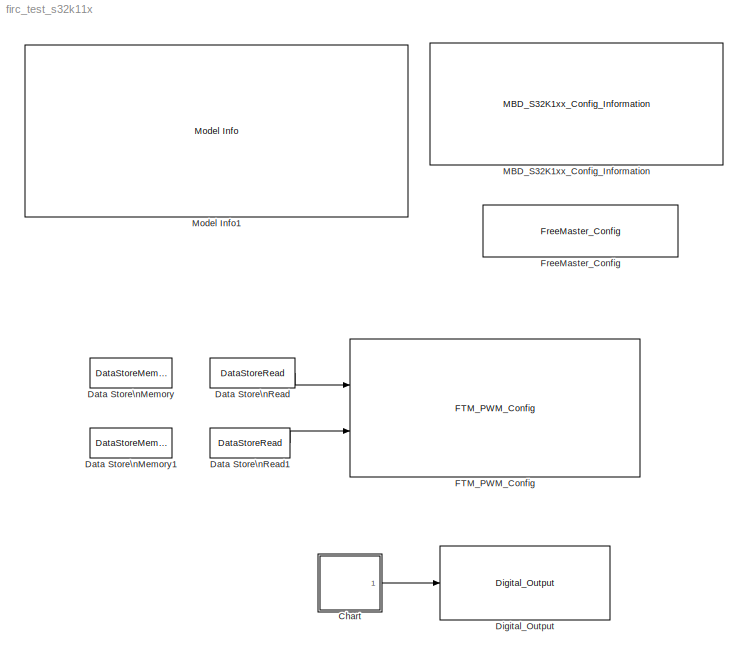
MODEL firc_test_s32k11x
KIND model
CONFIG InitFcn = mbd_s32k_consistency_checks(bdroot(gcs));
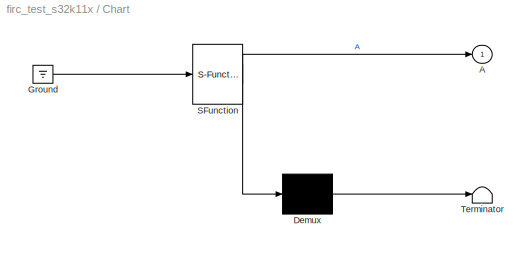
BLOCK [SubSystem] Chart
  ErrorFcn = Stateflow.Translate.translate
  PermitHierarchicalResolution = ExplicitOnly
  Ports = [0, 1]
  RequestExecContextInheritance = off
  SFBlockType = Chart
  SID = 13
  TreatAsAtomicUnit = on
  Variant = off
BLOCK [Outport] Chart/ A
  IconDisplay = Port number
  SID = 13::6
BLOCK [Demux] Chart/ Demux 
  Outputs = 1
  Ports = [1, 1]
  SID = 13::36
BLOCK [Ground] Chart/ Ground 
  SID = 13::38
BLOCK [S-Function] Chart/ SFunction 
  EnableBusSupport = off
  FunctionName = sf_sfun
  PortCounts = [1 2]
  Ports = [1, 2]
  SFcnIsStateOwnerBlock = off
  SFunctionDeploymentMode = off
  SID = 13::35
  Tag = Stateflow S-Function firc_test_s32k11x 3
BLOCK [Terminator] Chart/ Terminator 
  SID = 13::37
BLOCK [DataStoreMemory] Data Store\nMemory
  DataStoreName = duty_cycle_ch0
  InitialValue = 0.5
  OutDataTypeStr = single
  ReadBeforeWriteMsg = warning
  SID = 9
  ShowAdditionalParam = off
  WriteAfterReadMsg = warning
  WriteAfterWriteMsg = warning
BLOCK [DataStoreMemory] Data Store\nMemory1
  DataStoreName = duty_cycle_ch1
  InitialValue = 0.25
  OutDataTypeStr = single
  ReadBeforeWriteMsg = warning
  SID = 11
  ShowAdditionalParam = off
  WriteAfterReadMsg = warning
  WriteAfterWriteMsg = warning
BLOCK [DataStoreRead] Data Store\nRead
  DataStoreName = duty_cycle_ch0
  Ports = [0, 1]
  SID = 10
BLOCK [DataStoreRead] Data Store\nRead1
  DataStoreName = duty_cycle_ch1
  Ports = [0, 1]
  SID = 12
BLOCK [Reference] Digital_Output  REF=mbd_s32k1xx_ec_toolbox/GPIO Blocks/Digital_Output
  Ports = [1]
  SID = 14
  SourceBlock = mbd_s32k1xx_ec_toolbox/GPIO Blocks/Digital_Output
  SourceType = gpio_s32k_output
  drive_strength = Low
  gpio_pin = PTE8: [PTE8 | Port E I/O]
  init_val = Low
BLOCK [Reference] FTM_PWM_Config  REF=mbd_s32k1xx_ec_toolbox/Motor Control Blocks/FTM Blocks/FTM_PWM_Config
  Ports = [2]
  SID = 2
  SourceBlock = mbd_s32k1xx_ec_toolbox/Motor Control Blocks/FTM Blocks/FTM_PWM_Config
  SourceType = FTM_s32k_pwm_config_block
  chTrigger0 = off
  chTrigger1 = off
  chTrigger2 = off
  chTrigger3 = off
  chTrigger4 = off
  chTrigger5 = off
  chTrigger6 = off
  chTrigger7 = off
  chan0En = on
  chan0Type = Independent
  chan2En = off
  chan2Type = Independent
  chan4En = off
  chan4Type = Independent
  chan6En = off
  chan6Type = Independent
  chnMatch0 = off
  chnMatch1 = off
  chnMatch2 = off
  chnMatch3 = off
  chnMatch4 = off
  chnMatch5 = off
  chnMatch6 = off
  chnMatch7 = off
  deadtimeNs = 0
  deadtimePrescaler = Divide by 1
  deadtimeTicks = 0
  deadtimeUnits = Ticks
  dutyCycleCh0 = 0.25
  dutyCycleCh1 = 0.25
  dutyCycleCh2 = 0.25
  dutyCycleCh3 = 0.25
  dutyCycleCh4 = 0.25
  dutyCycleCh5 = 0.25
  dutyCycleCh6 = 0.25
  dutyCycleCh7 = 0.25
  dutyCycleSim = off
  fault_disen_0 = off
  fault_disen_1 = off
  fault_disen_2 = off
  fault_disen_3 = off
  fault_filter_0 = off
  fault_filter_1 = off
  fault_filter_2 = off
  fault_filter_3 = off
  fault_pin_0 = None
  fault_pin_1 = None
  fault_pin_2 = None
  fault_pin_3 = None
  fault_polarity_0 = Active High
  fault_polarity_1 = Active high
  fault_polarity_2 = Active high
  fault_polarity_3 = Active high
  ftmMode = Edge-Aligned PWM
  ftmModule = 0
  ftmPeriod = 4800
  ftmPrescaler = Divide by 1
  ftmPwmUnits = Hz
  ftmSourceClock = 48 MHz
  initTrigger = off
  mcuTargetUpdate = on
  outFrequency = 10000
  outputComplem0 = Main duplicated
  outputComplem2 = Main duplicated
  outputComplem4 = Main duplicated
  outputComplem6 = Main duplicated
  outputLevel0 = Low
  outputLevel1 = Low
  outputLevel2 = Low
  outputLevel3 = Low
  outputLevel4 = Low
  outputLevel5 = Low
  outputLevel6 = Low
  outputLevel7 = Low
  pinFtmCh0 = PTD15: [FTM0_CH0 | FTM Channel]
  pinFtmCh1 = PTD16: [FTM0_CH1 | FTM Channel]
  pinFtmCh2 = PTC2: [FTM0_CH2 | FTM Channel]
  pinFtmCh3 = None
  pinFtmCh4 = PTB4: [FTM0_CH4 | FTM Channel]
  pinFtmCh5 = None
  pinFtmCh6 = PTE8: [FTM0_CH6 | FTM Channel]
  pinFtmCh7 = None
  pinPolCh0 = Active High
  pinPolCh1 = Active High
  pinPolCh2 = Active Low
  pinPolCh3 = Active Low
  pinPolCh4 = Active Low
  pinPolCh5 = Active Low
  pinPolCh6 = Active Low
  pinPolCh7 = Active Low
  pwmFaultClearing = Fault control disabled
  pwmFaultFilterValue = 0
  pwmFaultInterrupt = off
  pwmFaultPinState = Safe Value
  pwmFaultPriority = 0
  pwmFaultProtection = off
  pwmSyncAutoClear = on
  pwmSyncCounterInitial = System Clock
  pwmSyncHwRouting = TRGMUX_FTM7
  pwmSyncInvert = System Clock
  pwmSyncMaxLoad = on
  pwmSyncMinLoad = on
  pwmSyncOutControl = System Clock
  pwmSyncOutMask = System Clock
  pwmSyncPoints = Update now
  pwmSyncTrg = Software trigger
  pwmSyncTrg0 = off
  pwmSyncTrg1 = off
  pwmSyncTrg2 = off
  reloadEnable = off
  reloadFrequency = 0
  reloadHCR = 0
  reloadHalfCycle = off
  reloadPriority = 0
  showAdvOpt = on
  startAfterInit = on
  swcontrol_enable = off
BLOCK [Reference] FreeMaster_Config  REF=mbd_s32k1xx_ec_toolbox/Utility Blocks/FreeMaster_Config
  Ports = []
  SID = 6
  SourceBlock = mbd_s32k1xx_ec_toolbox/Utility Blocks/FreeMaster_Config
  SourceType = fm_s32k_config
  baudrate = 57600
  comm_buffer_size = 255
  comm_buffer_size_auto = on
  comm_rqueue_size = 32
  comm_rqueue_size_default = on
  interface = LPUART0
  isr_prio = 0
  max_rec_vars = 8
  max_scope_vars = 8
  mode = Poll-driven
  rec_buff_size = 1024
  rec_timebase = 0
  rec_timebase_unit = seconds
  rxd = PTB0: [LPUART0_RX | Receive]
  show_adv_opts = off
  txd = PTB1: [LPUART0_TX | Transmit]
  use_recorder = on
  use_scope = on
BLOCK [Reference] MBD_S32K1xx_Config_Information  REF=mbd_s32k1xx_ec_toolbox/MBD_S32K1xx_Config_Information
  ADC_PcrCheckEnDis = on
  AMMCLIB_PcrCheckEnDis = on
  CMP_PcrCheckEnDis = on
  CSEc_PcrCheckEnDis = on
  ConfigParams_PcrCheckEnDis = on
  FM_PcrCheckEnDis = on
  FTM_Dual_Edge_Inputs_PcrCheckEnDis = on
  FTM_Hall_Sensor_Inputs_PcrCheckEnDis = on
  FTM_Input_Edge_Inputs_PcrCheckEnDis = on
  FTM_PWM_PcrCheckEnDis = on
  FTM_Quadrature_Inputs_PcrCheckEnDis = on
  FlexCAN_PcrCheckEnDis = on
  FlexIO_PcrCheckEnDis = on
  GPIO_InputPcrCheckEnDis = on
  GPIO_OutputPcrCheckEnDis = on
  LIN_PcrCheckEnDis = on
  LPI2C_PcrCheckEnDis = on
  LPSPI_PcrCheckEnDis = on
  LPTMR_PcrCheckEnDis = on
  LPUART_PcrCheckEnDis = on
  ModelRef_PcrCheckEnDis = on
  PDB0_PcrCheckEnDis = on
  PIT_PcrCheckEnDis = on
  Ports = []
  Profile_PcrCheckEnDis = on
  RTC_PcrCheckEnDis = on
  SBC_PcrCheckEnDis = on
  SID = 1
  SourceBlock = mbd_s32k1xx_ec_toolbox/MBD_S32K1xx_Config_Information
  SourceType = MBDTBX_EC_S32K
  WDOG_PcrCheckEnDis = on
  config_params = []
  disp_str = Target : S32K144-64KB_SRAM\nPackage : 100-pin\nSystem clock : 80 MHz\nXTAL clock : External 8 MHz\nCompiler : IAR\nTarget Type : FLASH\nDownload Code after build : off\nStep Tick Interrupt Priority : 15
  ds_import_enable = on
  eDMA_PcrCheckEnDis = on
  gcc_target_assemble_opts = -mcpu=cortex-m0plus -mthumb -g
  gcc_target_compile_opts = -mcpu=cortex-m0plus -mthumb -O1 -g -gstrict-dwarf
  gcc_target_default_lcf = on
  gcc_target_link_opts = -mcpu=cortex-m0plus -mthumb
  gcc_target_user_lcf = S32K118_25_flash.ld
  ghs_target_assemble_opts = -mcpu=cortexm0plus -mthumb -fsoft --gnu_asm
  ghs_target_compile_opts = -mcpu=cortexm0plus -mthumb -fsoft -Ogeneral -Wundef -Wimplicit-int -Wshadow -Wtrigraphs --no_commons --gnu_asm -gnu99 -gdwarf-2 -G
  ghs_target_default_lcf = on
  ghs_target_link_opts = -mcpu=cortexm0plus -mthumb -fsoft
  ghs_target_user_lcf = S32K118_25_flash.ld
  iar_target_assemble_opts = --thumb
  iar_target_compile_opts = --thumb -Ol -e --debug --dlib_config normal
  iar_target_default_lcf = on
  iar_target_link_opts = --no_exceptions --vfe --inline
  iar_target_user_lcf = S32K118_25_flash.icf
  mbdt_ver = 0
  mcu_steptick_prio = 3
  mcu_steptick_timer = LPIT Channel 0
  mcu_system_clock_freq = 48
  mcu_target_name = S32K118
  mcu_target_package = 48-LQFP
  mcu_target_sram_size = 25KB
  mcu_xtal_freq = External 40
  pil_download_enable = off
  pil_download_rate = 57600
  pil_opensda_drive = Custom
  pil_opensda_drive_custom = D
  pil_uart_instance = 0
  pil_uart_rx = PTA2: [LPUART0_RX | Receive]
  pil_uart_tx = PTA3: [LPUART0_TX | Transmit]
  rbl_com_port = Custom
  rbl_com_port_custom = COM1
  rbl_download_enable = on
  rbl_download_interface = OpenSDA
  rbl_restart_request = off
  rbl_start_delay = 5000
  target_compiler = GCC
  target_memory = FLASH
BLOCK [Reference] Model Info1  REF=simulink/Model-Wide\nUtilities/Model Info
  DisplayStringWithTags = Model Name: %<ModelName>\n\nDescription: %<Description>
  Frame = off
  HorizontalTextAlignment = Left
  LeftAlignmentValue = 0.02
  MaskDisplayString = Model Name: firc_test_s32k11x\\n\\nDescription: This model uses the Clock Frequency value 48 MHz. This uses the internal \\nFIRC clock as main core clock.\\n\\nFTM module 0 is set in PWM mode, output 10kHz, on channels,:\\nCH0 - PTD15 - J4.12 - S32K118 EVB, duty cycle 0.5\\nCH1 - PTD16 - J4.14 - S32K118 EVB, duty cycle 0.25\\n\\nValidation: The model should toggle every second the Blue LED.\\nThe ...<+128ch>
  Ports = []
  SID = 16
  SourceBlock = simulink/Model-Wide\nUtilities/Model Info
  SourceProductBaseCode = SL
  SourceProductName = Simulink
  SourceType = CMBlock
LINE Chart/ Demux :1 -> Chart/ Terminator :1
LINE Chart/ Ground :1 -> Chart/ SFunction :1
LINE Chart/ SFunction :1 -> Chart/ Demux :1
LINE Chart/ SFunction :2 -> Chart/ A:1
LINE Chart:1 -> Digital_Output:1
LINE Data Store\nRead1:1 -> FTM_PWM_Config:2
LINE Data Store\nRead:1 -> FTM_PWM_Config:1
CHART Chart states=2 transitions=3
  STATE_LABEL 'A'
  STATE_LABEL 'A1'
